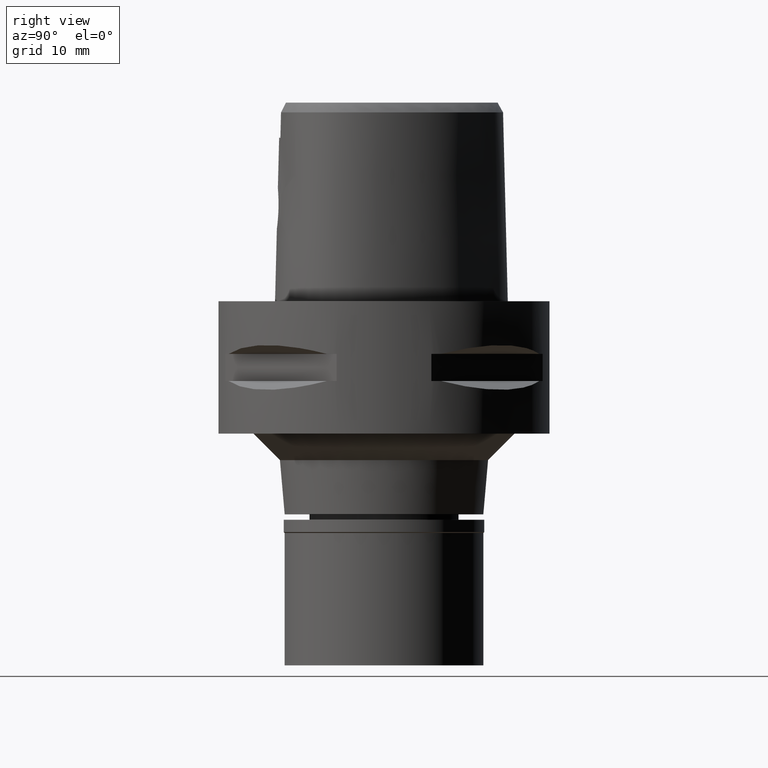
[diagram: clean part render]
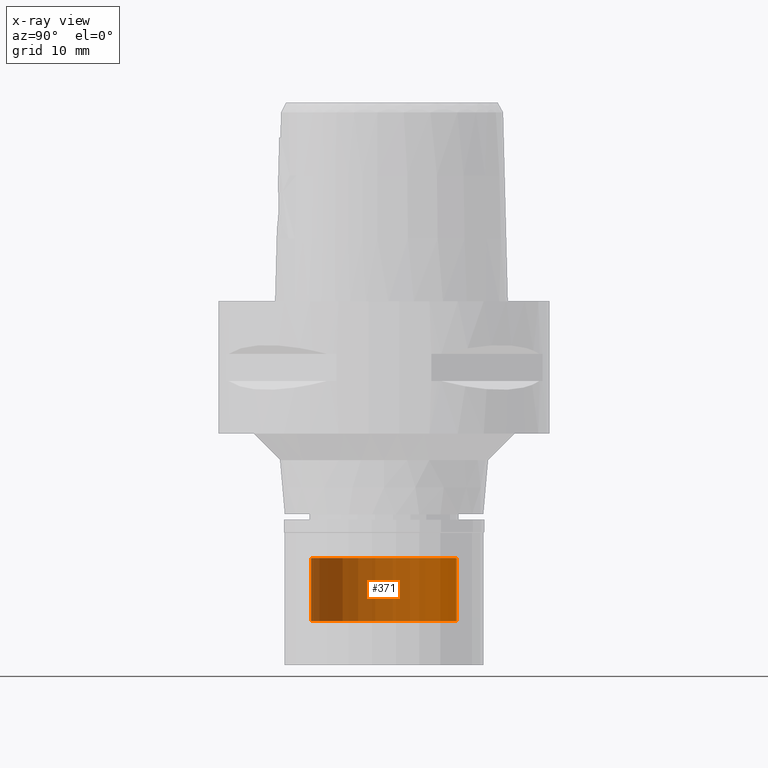
[diagram: x-ray — body ghosted, one internal face saturated and labeled with its STEP entity id]
A machine part, right view, then the same camera in x-ray: the body is ghosted and one INTERNAL B-rep face — a face not visible from any outside direction — is saturated and labeled: STEP entity #371.
In plain terms, the highlighted cylindrical surface (partial cylindrical patch) has radius 11 mm, axis along (0, 0, -1).
Its self-contained STEP definition (entity closure, byte-faithful):
#6 = EDGE_CURVE ( 'NONE', #108, #2887, #1028, .T. ) ;
#108 = VERTEX_POINT ( 'NONE', #4198 ) ;
#114 = CARTESIAN_POINT ( 'NONE',  ( 0.0000000000000000000, 11.00000000000000000, -38.80000000000000426 ) ) ;
#252 = EDGE_LOOP ( 'NONE', ( #1979, #3417, #4630, #2798 ) ) ;
#355 = DIRECTION ( 'NONE',  ( 0.0000000000000000000, -1.000000000000000000, 0.0000000000000000000 ) ) ;
#371 = ADVANCED_FACE ( 'NONE', ( #2939 ), #691, .T. ) ;
#435 = CARTESIAN_POINT ( 'NONE',  ( 0.0000000000000000000, -11.00000000000000000, -38.80000000000000426 ) ) ;
#519 = DIRECTION ( 'NONE',  ( 0.0000000000000000000, 1.000000000000000000, 0.0000000000000000000 ) ) ;
#605 = CARTESIAN_POINT ( 'NONE',  ( 0.0000000000000000000, 11.00000000000000000, -48.30000000000000426 ) ) ;
#691 = CYLINDRICAL_SURFACE ( 'NONE', #2534, 11.00000000000000000 ) ;
#1028 = CIRCLE ( 'NONE', #1112, 11.00000000000000000 ) ;
#1112 = AXIS2_PLACEMENT_3D ( 'NONE', #1902, #4157, #1926 ) ;
#1228 = CARTESIAN_POINT ( 'NONE',  ( 0.0000000000000000000, 11.00000000000000000, -38.80000000000000426 ) ) ;
#1873 = VERTEX_POINT ( 'NONE', #605 ) ;
#1878 = DIRECTION ( 'NONE',  ( 0.0000000000000000000, 0.0000000000000000000, -1.000000000000000000 ) ) ;
#1902 = CARTESIAN_POINT ( 'NONE',  ( 0.0000000000000000000, 1.254222019347000080E-14, -38.80000000000000426 ) ) ;
#1926 = DIRECTION ( 'NONE',  ( 0.0000000000000000000, -1.000000000000000000, 0.0000000000000000000 ) ) ;
#1958 = CIRCLE ( 'NONE', #3168, 11.00000000000000000 ) ;
#1979 = ORIENTED_EDGE ( 'NONE', *, *, #2862, .T. ) ;
#2125 = CARTESIAN_POINT ( 'NONE',  ( 0.0000000000000000000, 1.254222019347000080E-14, 2.415000000000000036 ) ) ;
#2220 = LINE ( 'NONE', #435, #4381 ) ;
#2314 = CARTESIAN_POINT ( 'NONE',  ( 0.0000000000000000000, -11.00000000000000000, -48.30000000000000426 ) ) ;
#2532 = DIRECTION ( 'NONE',  ( 0.0000000000000000000, 0.0000000000000000000, -1.000000000000000000 ) ) ;
#2534 = AXIS2_PLACEMENT_3D ( 'NONE', #2125, #2532, #355 ) ;
#2659 = DIRECTION ( 'NONE',  ( 0.0000000000000000000, 0.0000000000000000000, -1.000000000000000000 ) ) ;
#2798 = ORIENTED_EDGE ( 'NONE', *, *, #2930, .T. ) ;
#2862 = EDGE_CURVE ( 'NONE', #1873, #4322, #1958, .T. ) ;
#2887 = VERTEX_POINT ( 'NONE', #114 ) ;
#2930 = EDGE_CURVE ( 'NONE', #2887, #1873, #4474, .T. ) ;
#2939 = FACE_OUTER_BOUND ( 'NONE', #252, .T. ) ;
#2998 = DIRECTION ( 'NONE',  ( 0.0000000000000000000, 0.0000000000000000000, 1.000000000000000000 ) ) ;
#3168 = AXIS2_PLACEMENT_3D ( 'NONE', #4136, #2998, #519 ) ;
#3387 = EDGE_CURVE ( 'NONE', #108, #4322, #2220, .T. ) ;
#3417 = ORIENTED_EDGE ( 'NONE', *, *, #3387, .F. ) ;
#3618 = VECTOR ( 'NONE', #2659, 1000.000000000000000 ) ;
#4136 = CARTESIAN_POINT ( 'NONE',  ( 0.0000000000000000000, 1.254222019347000080E-14, -48.30000000000000426 ) ) ;
#4157 = DIRECTION ( 'NONE',  ( 0.0000000000000000000, 0.0000000000000000000, -1.000000000000000000 ) ) ;
#4198 = CARTESIAN_POINT ( 'NONE',  ( 0.0000000000000000000, -11.00000000000000000, -38.80000000000000426 ) ) ;
#4322 = VERTEX_POINT ( 'NONE', #2314 ) ;
#4381 = VECTOR ( 'NONE', #1878, 1000.000000000000000 ) ;
#4474 = LINE ( 'NONE', #1228, #3618 ) ;
#4630 = ORIENTED_EDGE ( 'NONE', *, *, #6, .T. ) ;